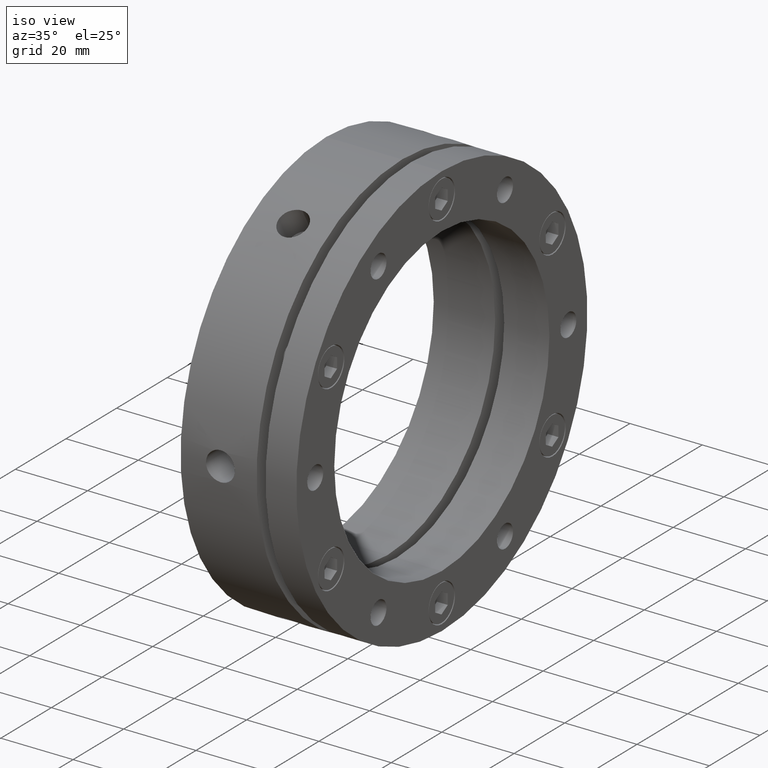
[diagram: clean part render]
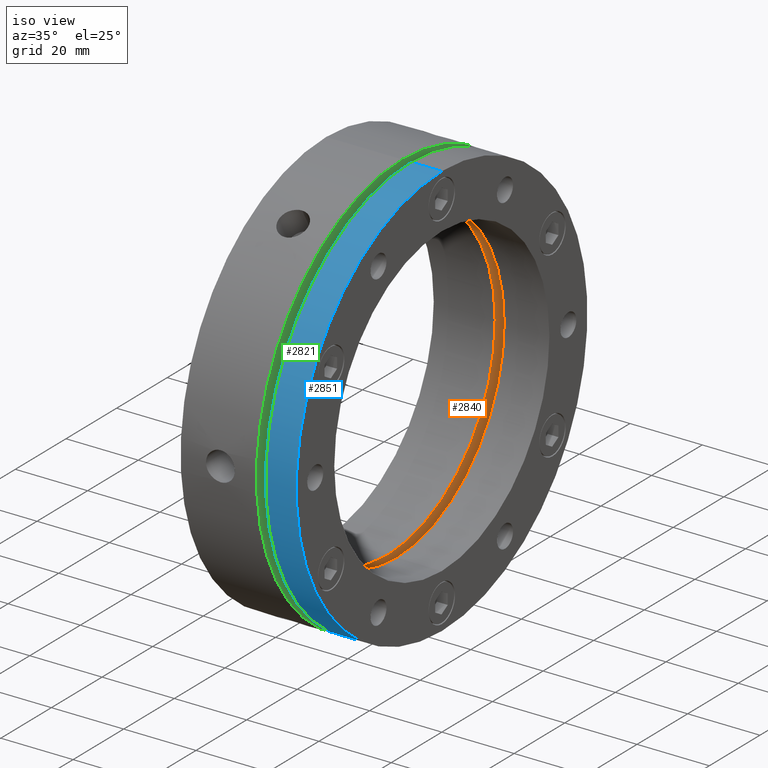
[diagram: same view with three faces highlighted in distinct colors, each labeled with its STEP entity id]
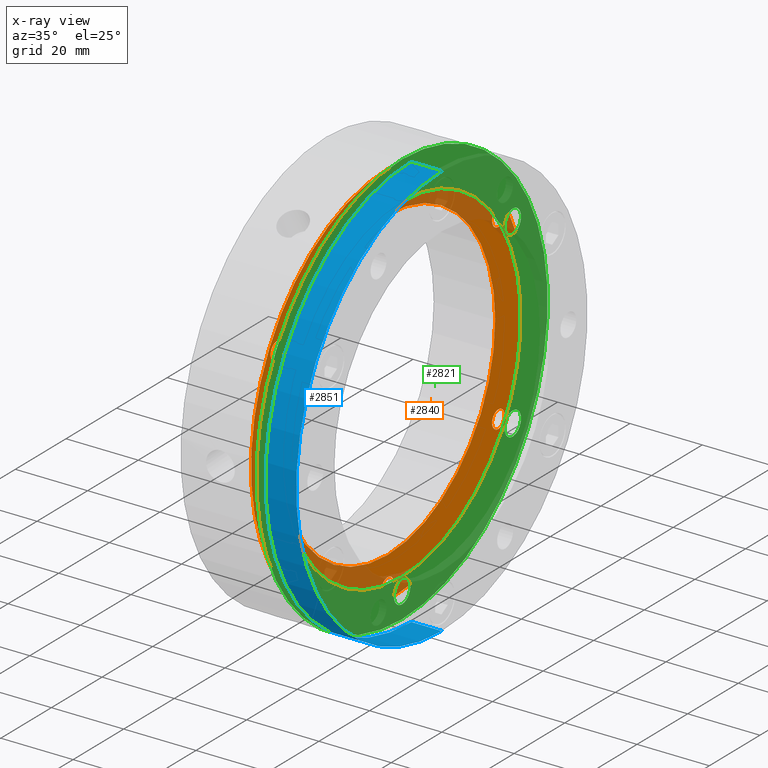
[diagram: x-ray of the same camera — body ghosted, the three highlighted faces saturated]
A machine part, iso view with three faces highlighted in distinct colors.
The next image is the same camera in x-ray (body ghosted, the three faces saturated) — at least one of them is partly hidden behind the body in this view.
Their STEP definitions:

[orange] entity #2840 — the highlighted planar face has unit normal (-1, 0, 0).
#160 = EDGE_LOOP ( 'NONE', ( #988, #986 ) ) ;
#190 = EDGE_LOOP ( 'NONE', ( #995, #992 ) ) ;
#218 = EDGE_LOOP ( 'NONE', ( #978, #977 ) ) ;
#219 = EDGE_LOOP ( 'NONE', ( #985, #984 ) ) ;
#227 = EDGE_LOOP ( 'NONE', ( #981, #979 ) ) ;
#230 = EDGE_LOOP ( 'NONE', ( #990, #989 ) ) ;
#234 = EDGE_LOOP ( 'NONE', ( #1521, #1586 ) ) ;
#244 = EDGE_LOOP ( 'NONE', ( #999, #996 ) ) ;
#297 = VERTEX_POINT ( 'NONE', #1293 ) ;
#317 = VERTEX_POINT ( 'NONE', #1308 ) ;
#320 = VERTEX_POINT ( 'NONE', #1311 ) ;
#321 = VERTEX_POINT ( 'NONE', #1312 ) ;
#357 = VERTEX_POINT ( 'NONE', #1348 ) ;
#389 = VERTEX_POINT ( 'NONE', #1380 ) ;
#394 = VERTEX_POINT ( 'NONE', #1385 ) ;
#396 = VERTEX_POINT ( 'NONE', #1387 ) ;
#404 = VERTEX_POINT ( 'NONE', #1395 ) ;
#411 = VERTEX_POINT ( 'NONE', #1402 ) ;
#429 = VERTEX_POINT ( 'NONE', #1811 ) ;
#450 = VERTEX_POINT ( 'NONE', #1832 ) ;
#461 = VERTEX_POINT ( 'NONE', #1843 ) ;
#477 = VERTEX_POINT ( 'NONE', #1859 ) ;
#478 = VERTEX_POINT ( 'NONE', #1860 ) ;
#480 = VERTEX_POINT ( 'NONE', #1862 ) ;
#556 = AXIS2_PLACEMENT_3D ( 'NONE', #2290, #2291, #2292 ) ;
#558 = AXIS2_PLACEMENT_3D ( 'NONE', #2280, #2281, #2282 ) ;
#560 = AXIS2_PLACEMENT_3D ( 'NONE', #2270, #2271, #2272 ) ;
#562 = AXIS2_PLACEMENT_3D ( 'NONE', #2260, #2261, #2262 ) ;
#564 = AXIS2_PLACEMENT_3D ( 'NONE', #2250, #2251, #2252 ) ;
#566 = AXIS2_PLACEMENT_3D ( 'NONE', #2240, #2241, #2242 ) ;
#567 = AXIS2_PLACEMENT_3D ( 'NONE', #2235, #2236, #2237 ) ;
#610 = EDGE_CURVE ( 'NONE', #450, #404, #4178, .T. ) ;
#612 = EDGE_CURVE ( 'NONE', #396, #477, #4181, .T. ) ;
#616 = EDGE_CURVE ( 'NONE', #411, #317, #4187, .T. ) ;
#620 = EDGE_CURVE ( 'NONE', #429, #461, #4193, .T. ) ;
#624 = EDGE_CURVE ( 'NONE', #320, #321, #4199, .T. ) ;
#628 = EDGE_CURVE ( 'NONE', #389, #297, #4205, .T. ) ;
#632 = EDGE_CURVE ( 'NONE', #357, #394, #4211, .T. ) ;
#678 = EDGE_CURVE ( 'NONE', #480, #478, #4287, .T. ) ;
#751 = AXIS2_PLACEMENT_3D ( 'NONE', #2691, #2692, #2693 ) ;
#803 = AXIS2_PLACEMENT_3D ( 'NONE', #2688, #2689, #2690 ) ;
#822 = AXIS2_PLACEMENT_3D ( 'NONE', #2791, #2792, #2793 ) ;
#827 = AXIS2_PLACEMENT_3D ( 'NONE', #2776, #2777, #2778 ) ;
#837 = AXIS2_PLACEMENT_3D ( 'NONE', #2745, #2746, #2747 ) ;
#838 = AXIS2_PLACEMENT_3D ( 'NONE', #2742, #2743, #2744 ) ;
#844 = AXIS2_PLACEMENT_3D ( 'NONE', #2739, #2740, #2741 ) ;
#878 = AXIS2_PLACEMENT_3D ( 'NONE', #2399, #2400, #2401 ) ;
#977 = ORIENTED_EDGE ( 'NONE', *, *, #632, .T. ) ;
#978 = ORIENTED_EDGE ( 'NONE', *, *, #1686, .T. ) ;
#979 = ORIENTED_EDGE ( 'NONE', *, *, #628, .T. ) ;
#981 = ORIENTED_EDGE ( 'NONE', *, *, #1637, .T. ) ;
#984 = ORIENTED_EDGE ( 'NONE', *, *, #624, .T. ) ;
#985 = ORIENTED_EDGE ( 'NONE', *, *, #1671, .T. ) ;
#986 = ORIENTED_EDGE ( 'NONE', *, *, #620, .T. ) ;
#988 = ORIENTED_EDGE ( 'NONE', *, *, #1636, .T. ) ;
#989 = ORIENTED_EDGE ( 'NONE', *, *, #616, .T. ) ;
#990 = ORIENTED_EDGE ( 'NONE', *, *, #1653, .T. ) ;
#992 = ORIENTED_EDGE ( 'NONE', *, *, #612, .T. ) ;
#995 = ORIENTED_EDGE ( 'NONE', *, *, #1655, .T. ) ;
#996 = ORIENTED_EDGE ( 'NONE', *, *, #1654, .T. ) ;
#999 = ORIENTED_EDGE ( 'NONE', *, *, #610, .T. ) ;
#1113 = AXIS2_PLACEMENT_3D ( 'NONE', #2995, #2996, #2997 ) ;
#1293 = CARTESIAN_POINT ( 'NONE',  ( 17.00000000000000700, 43.73428289111416200, -22.79150000000003800 ) ) ;
#1308 = CARTESIAN_POINT ( 'NONE',  ( 17.00000000000000700, -43.73428289111416900, 27.70850000000001900 ) ) ;
#1311 = CARTESIAN_POINT ( 'NONE',  ( 17.00000000000000700, -8.580704584429623500E-015, -52.95850000000004300 ) ) ;
#1312 = CARTESIAN_POINT ( 'NONE',  ( 17.00000000000000700, -8.881783999999999800E-015, -48.04150000000003500 ) ) ;
#1348 = CARTESIAN_POINT ( 'NONE',  ( 17.00000000000000700, 43.73428289111419800, 22.79149999999997800 ) ) ;
#1380 = CARTESIAN_POINT ( 'NONE',  ( 17.00000000000000700, 43.73428289111416200, -27.70850000000003600 ) ) ;
#1385 = CARTESIAN_POINT ( 'NONE',  ( 17.00000000000000700, 43.73428289111419800, 27.70849999999998300 ) ) ;
#1387 = CARTESIAN_POINT ( 'NONE',  ( 17.00000000000000700, 3.010794155703764200E-016, 48.04150000000002800 ) ) ;
#1395 = CARTESIAN_POINT ( 'NONE',  ( 17.00000000000000700, 5.204748896376250900E-015, 42.50000000000000000 ) ) ;
#1402 = CARTESIAN_POINT ( 'NONE',  ( 17.00000000000000700, -43.73428289111416900, 22.79150000000002100 ) ) ;
#1521 = ORIENTED_EDGE ( 'NONE', *, *, #1666, .F. ) ;
#1586 = ORIENTED_EDGE ( 'NONE', *, *, #678, .F. ) ;
#1636 = EDGE_CURVE ( 'NONE', #461, #429, #4443, .T. ) ;
#1637 = EDGE_CURVE ( 'NONE', #297, #389, #4445, .T. ) ;
#1653 = EDGE_CURVE ( 'NONE', #317, #411, #4461, .T. ) ;
#1654 = EDGE_CURVE ( 'NONE', #404, #450, #4462, .T. ) ;
#1655 = EDGE_CURVE ( 'NONE', #477, #396, #4463, .T. ) ;
#1666 = EDGE_CURVE ( 'NONE', #478, #480, #4476, .T. ) ;
#1671 = EDGE_CURVE ( 'NONE', #321, #320, #4481, .T. ) ;
#1686 = EDGE_CURVE ( 'NONE', #394, #357, #4496, .T. ) ;
#1797 = AXIS2_PLACEMENT_3D ( 'NONE', #3329, #3327, #3332 ) ;
#1811 = CARTESIAN_POINT ( 'NONE',  ( 17.00000000000000700, -43.73428289111417700, -27.70850000000000400 ) ) ;
#1832 = CARTESIAN_POINT ( 'NONE',  ( 17.00000000000000700, 0.0000000000000000000, -42.50000000000000000 ) ) ;
#1843 = CARTESIAN_POINT ( 'NONE',  ( 17.00000000000000700, -43.73428289111417700, -22.79150000000000600 ) ) ;
#1859 = CARTESIAN_POINT ( 'NONE',  ( 17.00000000000000700, 0.0000000000000000000, 52.95850000000003600 ) ) ;
#1860 = CARTESIAN_POINT ( 'NONE',  ( 17.00000000000000000, 0.0000000000000000000, 54.00000000000000000 ) ) ;
#1862 = CARTESIAN_POINT ( 'NONE',  ( 17.00000000000000000, 6.613092715395707500E-015, -54.00000000000000000 ) ) ;
#2235 = CARTESIAN_POINT ( 'NONE',  ( 17.00000000000000700, 0.0000000000000000000, 0.0000000000000000000 ) ) ;
#2236 = DIRECTION ( 'NONE',  ( -1.000000000000000000, -0.0000000000000000000, -0.0000000000000000000 ) ) ;
#2237 = DIRECTION ( 'NONE',  ( 0.0000000000000000000, 0.0000000000000000000, -1.000000000000000000 ) ) ;
#2240 = CARTESIAN_POINT ( 'NONE',  ( 17.00000000000000700, 0.0000000000000000000, 50.50000000000002800 ) ) ;
#2241 = DIRECTION ( 'NONE',  ( -1.000000000000000000, 0.0000000000000000000, 0.0000000000000000000 ) ) ;
#2242 = DIRECTION ( 'NONE',  ( 0.0000000000000000000, 0.0000000000000000000, 1.000000000000000000 ) ) ;
#2250 = CARTESIAN_POINT ( 'NONE',  ( 17.00000000000000700, -43.73428289111416900, 25.25000000000001800 ) ) ;
#2251 = DIRECTION ( 'NONE',  ( -1.000000000000000000, 0.0000000000000000000, 0.0000000000000000000 ) ) ;
#2252 = DIRECTION ( 'NONE',  ( 0.0000000000000000000, 0.0000000000000000000, 1.000000000000000000 ) ) ;
#2260 = CARTESIAN_POINT ( 'NONE',  ( 17.00000000000000700, -43.73428289111417700, -25.25000000000000400 ) ) ;
#2261 = DIRECTION ( 'NONE',  ( -1.000000000000000000, 0.0000000000000000000, 0.0000000000000000000 ) ) ;
#2262 = DIRECTION ( 'NONE',  ( 0.0000000000000000000, 0.0000000000000000000, 1.000000000000000000 ) ) ;
#2270 = CARTESIAN_POINT ( 'NONE',  ( 17.00000000000000700, -8.881783999999999800E-015, -50.50000000000003600 ) ) ;
#2271 = DIRECTION ( 'NONE',  ( -1.000000000000000000, 0.0000000000000000000, 0.0000000000000000000 ) ) ;
#2272 = DIRECTION ( 'NONE',  ( 0.0000000000000000000, 0.0000000000000000000, 1.000000000000000000 ) ) ;
#2280 = CARTESIAN_POINT ( 'NONE',  ( 17.00000000000000700, 43.73428289111416200, -25.25000000000003600 ) ) ;
#2281 = DIRECTION ( 'NONE',  ( -1.000000000000000000, 0.0000000000000000000, 0.0000000000000000000 ) ) ;
#2282 = DIRECTION ( 'NONE',  ( 0.0000000000000000000, 0.0000000000000000000, 1.000000000000000000 ) ) ;
#2290 = CARTESIAN_POINT ( 'NONE',  ( 17.00000000000000700, 43.73428289111419800, 25.24999999999998200 ) ) ;
#2291 = DIRECTION ( 'NONE',  ( -1.000000000000000000, 0.0000000000000000000, 0.0000000000000000000 ) ) ;
#2292 = DIRECTION ( 'NONE',  ( 0.0000000000000000000, 0.0000000000000000000, 1.000000000000000000 ) ) ;
#2399 = CARTESIAN_POINT ( 'NONE',  ( 17.00000000000000000, 0.0000000000000000000, 0.0000000000000000000 ) ) ;
#2400 = DIRECTION ( 'NONE',  ( -1.000000000000000000, 0.0000000000000000000, 0.0000000000000000000 ) ) ;
#2401 = DIRECTION ( 'NONE',  ( 0.0000000000000000000, 0.0000000000000000000, 1.000000000000000000 ) ) ;
#2688 = CARTESIAN_POINT ( 'NONE',  ( 17.00000000000000700, -43.73428289111417700, -25.25000000000000400 ) ) ;
#2689 = DIRECTION ( 'NONE',  ( -1.000000000000000000, 0.0000000000000000000, 0.0000000000000000000 ) ) ;
#2690 = DIRECTION ( 'NONE',  ( 0.0000000000000000000, 0.0000000000000000000, 1.000000000000000000 ) ) ;
#2691 = CARTESIAN_POINT ( 'NONE',  ( 17.00000000000000700, 43.73428289111416200, -25.25000000000003600 ) ) ;
#2692 = DIRECTION ( 'NONE',  ( -1.000000000000000000, 0.0000000000000000000, 0.0000000000000000000 ) ) ;
#2693 = DIRECTION ( 'NONE',  ( 0.0000000000000000000, 0.0000000000000000000, 1.000000000000000000 ) ) ;
#2739 = CARTESIAN_POINT ( 'NONE',  ( 17.00000000000000700, -43.73428289111416900, 25.25000000000001800 ) ) ;
#2740 = DIRECTION ( 'NONE',  ( -1.000000000000000000, 0.0000000000000000000, 0.0000000000000000000 ) ) ;
#2741 = DIRECTION ( 'NONE',  ( 0.0000000000000000000, 0.0000000000000000000, 1.000000000000000000 ) ) ;
#2742 = CARTESIAN_POINT ( 'NONE',  ( 17.00000000000000700, 0.0000000000000000000, 0.0000000000000000000 ) ) ;
#2743 = DIRECTION ( 'NONE',  ( -1.000000000000000000, -0.0000000000000000000, -0.0000000000000000000 ) ) ;
#2744 = DIRECTION ( 'NONE',  ( 0.0000000000000000000, 0.0000000000000000000, -1.000000000000000000 ) ) ;
#2745 = CARTESIAN_POINT ( 'NONE',  ( 17.00000000000000700, 0.0000000000000000000, 50.50000000000002800 ) ) ;
#2746 = DIRECTION ( 'NONE',  ( -1.000000000000000000, 0.0000000000000000000, 0.0000000000000000000 ) ) ;
#2747 = DIRECTION ( 'NONE',  ( 0.0000000000000000000, 0.0000000000000000000, 1.000000000000000000 ) ) ;
#2776 = CARTESIAN_POINT ( 'NONE',  ( 17.00000000000000000, 0.0000000000000000000, 0.0000000000000000000 ) ) ;
#2777 = DIRECTION ( 'NONE',  ( -1.000000000000000000, 0.0000000000000000000, 0.0000000000000000000 ) ) ;
#2778 = DIRECTION ( 'NONE',  ( 0.0000000000000000000, 0.0000000000000000000, 1.000000000000000000 ) ) ;
#2791 = CARTESIAN_POINT ( 'NONE',  ( 17.00000000000000700, -8.881783999999999800E-015, -50.50000000000003600 ) ) ;
#2792 = DIRECTION ( 'NONE',  ( -1.000000000000000000, 0.0000000000000000000, 0.0000000000000000000 ) ) ;
#2793 = DIRECTION ( 'NONE',  ( 0.0000000000000000000, 0.0000000000000000000, 1.000000000000000000 ) ) ;
#2840 = ADVANCED_FACE ( 'NONE', ( #4654, #4662, #4658, #4656, #4660, #4663, #4664, #4665 ), #3330, .F. ) ;
#2995 = CARTESIAN_POINT ( 'NONE',  ( 17.00000000000000700, 43.73428289111419800, 25.24999999999998200 ) ) ;
#2996 = DIRECTION ( 'NONE',  ( -1.000000000000000000, 0.0000000000000000000, 0.0000000000000000000 ) ) ;
#2997 = DIRECTION ( 'NONE',  ( 0.0000000000000000000, 0.0000000000000000000, 1.000000000000000000 ) ) ;
#3327 = DIRECTION ( 'NONE',  ( -1.000000000000000000, 0.0000000000000000000, 0.0000000000000000000 ) ) ;
#3329 = CARTESIAN_POINT ( 'NONE',  ( 17.00000000000000700, 27.00000000000000000, 0.0000000000000000000 ) ) ;
#3330 = PLANE ( 'NONE',  #1797 ) ;
#3332 = DIRECTION ( 'NONE',  ( 0.0000000000000000000, 0.0000000000000000000, 1.000000000000000000 ) ) ;
#4178 = CIRCLE ( 'NONE', #567, 42.50000000000000000 ) ;
#4181 = CIRCLE ( 'NONE', #566, 2.458500000000002600 ) ;
#4187 = CIRCLE ( 'NONE', #564, 2.458499999999999000 ) ;
#4193 = CIRCLE ( 'NONE', #562, 2.458499999999999000 ) ;
#4199 = CIRCLE ( 'NONE', #560, 2.458500000000002600 ) ;
#4205 = CIRCLE ( 'NONE', #558, 2.458499999999999000 ) ;
#4211 = CIRCLE ( 'NONE', #556, 2.458500000000002600 ) ;
#4287 = CIRCLE ( 'NONE', #878, 54.00000000000000000 ) ;
#4443 = CIRCLE ( 'NONE', #803, 2.458499999999999000 ) ;
#4445 = CIRCLE ( 'NONE', #751, 2.458499999999999000 ) ;
#4461 = CIRCLE ( 'NONE', #844, 2.458499999999999000 ) ;
#4462 = CIRCLE ( 'NONE', #838, 42.50000000000000000 ) ;
#4463 = CIRCLE ( 'NONE', #837, 2.458500000000002600 ) ;
#4476 = CIRCLE ( 'NONE', #827, 54.00000000000000000 ) ;
#4481 = CIRCLE ( 'NONE', #822, 2.458500000000002600 ) ;
#4496 = CIRCLE ( 'NONE', #1113, 2.458500000000002600 ) ;
#4654 = FACE_BOUND ( 'NONE', #244, .T. ) ;
#4656 = FACE_BOUND ( 'NONE', #160, .T. ) ;
#4658 = FACE_BOUND ( 'NONE', #230, .T. ) ;
#4660 = FACE_BOUND ( 'NONE', #219, .T. ) ;
#4662 = FACE_BOUND ( 'NONE', #190, .T. ) ;
#4663 = FACE_BOUND ( 'NONE', #227, .T. ) ;
#4664 = FACE_BOUND ( 'NONE', #218, .T. ) ;
#4665 = FACE_OUTER_BOUND ( 'NONE', #234, .T. ) ;

[blue] entity #2851 — the highlighted cylindrical surface (partial cylindrical patch) has radius 57.5 mm, axis along (1, 0, 0).
#82 = EDGE_LOOP ( 'NONE', ( #1066, #1065, #1064, #1063 ) ) ;
#423 = VERTEX_POINT ( 'NONE', #1805 ) ;
#424 = VERTEX_POINT ( 'NONE', #1806 ) ;
#434 = VERTEX_POINT ( 'NONE', #1816 ) ;
#444 = VERTEX_POINT ( 'NONE', #1826 ) ;
#705 = EDGE_CURVE ( 'NONE', #434, #424, #4326, .T. ) ;
#707 = EDGE_CURVE ( 'NONE', #444, #423, #4331, .T. ) ;
#813 = AXIS2_PLACEMENT_3D ( 'NONE', #2971, #2972, #2973 ) ;
#825 = AXIS2_PLACEMENT_3D ( 'NONE', #2782, #2783, #2784 ) ;
#1063 = ORIENTED_EDGE ( 'NONE', *, *, #1668, .T. ) ;
#1064 = ORIENTED_EDGE ( 'NONE', *, *, #707, .T. ) ;
#1065 = ORIENTED_EDGE ( 'NONE', *, *, #1678, .T. ) ;
#1066 = ORIENTED_EDGE ( 'NONE', *, *, #705, .F. ) ;
#1668 = EDGE_CURVE ( 'NONE', #423, #424, #4478, .T. ) ;
#1678 = EDGE_CURVE ( 'NONE', #434, #444, #4488, .T. ) ;
#1786 = AXIS2_PLACEMENT_3D ( 'NONE', #3367, #3365, #3363 ) ;
#1805 = CARTESIAN_POINT ( 'NONE',  ( 31.99999999999998600, 0.0000000000000000000, -57.50000000000000000 ) ) ;
#1806 = CARTESIAN_POINT ( 'NONE',  ( 31.99999999999998600, 7.041719095097280500E-015, 57.50000000000000000 ) ) ;
#1816 = CARTESIAN_POINT ( 'NONE',  ( 23.49999999999999300, 7.041719095097280500E-015, 57.50000000000000000 ) ) ;
#1826 = CARTESIAN_POINT ( 'NONE',  ( 23.49999999999999300, 0.0000000000000000000, -57.50000000000000000 ) ) ;
#2462 = DIRECTION ( 'NONE',  ( 1.000000000000000000, 0.0000000000000000000, 0.0000000000000000000 ) ) ;
#2463 = CARTESIAN_POINT ( 'NONE',  ( 15.99999999999998600, 0.0000000000000000000, -57.50000000000000000 ) ) ;
#2464 = DIRECTION ( 'NONE',  ( 1.000000000000000000, 0.0000000000000000000, 0.0000000000000000000 ) ) ;
#2465 = CARTESIAN_POINT ( 'NONE',  ( 15.99999999999998600, 7.041719095097280500E-015, 57.50000000000000000 ) ) ;
#2782 = CARTESIAN_POINT ( 'NONE',  ( 31.99999999999998600, 0.0000000000000000000, 0.0000000000000000000 ) ) ;
#2783 = DIRECTION ( 'NONE',  ( -1.000000000000000000, -0.0000000000000000000, -0.0000000000000000000 ) ) ;
#2784 = DIRECTION ( 'NONE',  ( 0.0000000000000000000, 0.0000000000000000000, -1.000000000000000000 ) ) ;
#2851 = ADVANCED_FACE ( 'NONE', ( #4694 ), #4703, .T. ) ;
#2971 = CARTESIAN_POINT ( 'NONE',  ( 23.49999999999999300, 0.0000000000000000000, 0.0000000000000000000 ) ) ;
#2972 = DIRECTION ( 'NONE',  ( 1.000000000000000000, 0.0000000000000000000, 0.0000000000000000000 ) ) ;
#2973 = DIRECTION ( 'NONE',  ( 0.0000000000000000000, 0.0000000000000000000, -1.000000000000000000 ) ) ;
#3363 = DIRECTION ( 'NONE',  ( 0.0000000000000000000, 0.0000000000000000000, -1.000000000000000000 ) ) ;
#3365 = DIRECTION ( 'NONE',  ( 1.000000000000000000, 0.0000000000000000000, 0.0000000000000000000 ) ) ;
#3367 = CARTESIAN_POINT ( 'NONE',  ( 15.99999999999998600, 0.0000000000000000000, 0.0000000000000000000 ) ) ;
#4326 = LINE ( 'NONE', #2465, #4330 ) ;
#4330 = VECTOR ( 'NONE', #2462, 1000.000000000000000 ) ;
#4331 = LINE ( 'NONE', #2463, #4333 ) ;
#4333 = VECTOR ( 'NONE', #2464, 1000.000000000000000 ) ;
#4478 = CIRCLE ( 'NONE', #825, 57.50000000000000000 ) ;
#4488 = CIRCLE ( 'NONE', #813, 57.50000000000000000 ) ;
#4694 = FACE_OUTER_BOUND ( 'NONE', #82, .T. ) ;
#4703 = CYLINDRICAL_SURFACE ( 'NONE', #1786, 57.50000000000000000 ) ;

[green] entity #2821 — the highlighted planar face has unit normal (-1, 0, 0).
#108 = EDGE_LOOP ( 'NONE', ( #1502, #505 ) ) ;
#136 = EDGE_LOOP ( 'NONE', ( #500, #495 ) ) ;
#169 = EDGE_LOOP ( 'NONE', ( #1504, #1503 ) ) ;
#175 = EDGE_LOOP ( 'NONE', ( #496, #493 ) ) ;
#193 = EDGE_LOOP ( 'NONE', ( #1510, #1509 ) ) ;
#195 = EDGE_LOOP ( 'NONE', ( #499, #503 ) ) ;
#246 = EDGE_LOOP ( 'NONE', ( #1506, #1505 ) ) ;
#275 = EDGE_LOOP ( 'NONE', ( #1508, #1507 ) ) ;
#324 = VERTEX_POINT ( 'NONE', #1315 ) ;
#334 = VERTEX_POINT ( 'NONE', #1325 ) ;
#353 = VERTEX_POINT ( 'NONE', #1344 ) ;
#360 = VERTEX_POINT ( 'NONE', #1351 ) ;
#367 = VERTEX_POINT ( 'NONE', #1358 ) ;
#398 = VERTEX_POINT ( 'NONE', #1389 ) ;
#416 = VERTEX_POINT ( 'NONE', #1463 ) ;
#419 = VERTEX_POINT ( 'NONE', #880 ) ;
#425 = VERTEX_POINT ( 'NONE', #1807 ) ;
#432 = VERTEX_POINT ( 'NONE', #1814 ) ;
#437 = VERTEX_POINT ( 'NONE', #1819 ) ;
#440 = VERTEX_POINT ( 'NONE', #1822 ) ;
#462 = VERTEX_POINT ( 'NONE', #1844 ) ;
#476 = VERTEX_POINT ( 'NONE', #1858 ) ;
#485 = VERTEX_POINT ( 'NONE', #1867 ) ;
#486 = VERTEX_POINT ( 'NONE', #1868 ) ;
#493 = ORIENTED_EDGE ( 'NONE', *, *, #585, .F. ) ;
#495 = ORIENTED_EDGE ( 'NONE', *, *, #670, .F. ) ;
#496 = ORIENTED_EDGE ( 'NONE', *, *, #1725, .F. ) ;
#499 = ORIENTED_EDGE ( 'NONE', *, *, #1688, .F. ) ;
#500 = ORIENTED_EDGE ( 'NONE', *, *, #1685, .F. ) ;
#503 = ORIENTED_EDGE ( 'NONE', *, *, #674, .F. ) ;
#505 = ORIENTED_EDGE ( 'NONE', *, *, #666, .F. ) ;
#551 = AXIS2_PLACEMENT_3D ( 'NONE', #2339, #2340, #2341 ) ;
#553 = AXIS2_PLACEMENT_3D ( 'NONE', #2329, #2330, #2331 ) ;
#575 = AXIS2_PLACEMENT_3D ( 'NONE', #2081, #2082, #2083 ) ;
#585 = EDGE_CURVE ( 'NONE', #334, #425, #4147, .T. ) ;
#650 = EDGE_CURVE ( 'NONE', #416, #398, #4245, .T. ) ;
#654 = EDGE_CURVE ( 'NONE', #419, #462, #4250, .T. ) ;
#658 = EDGE_CURVE ( 'NONE', #437, #360, #4256, .T. ) ;
#662 = EDGE_CURVE ( 'NONE', #324, #432, #4262, .T. ) ;
#666 = EDGE_CURVE ( 'NONE', #440, #476, #4268, .T. ) ;
#670 = EDGE_CURVE ( 'NONE', #367, #353, #4274, .T. ) ;
#674 = EDGE_CURVE ( 'NONE', #486, #485, #4280, .T. ) ;
#787 = AXIS2_PLACEMENT_3D ( 'NONE', #2349, #2350, #2351 ) ;
#790 = AXIS2_PLACEMENT_3D ( 'NONE', #2989, #2990, #2991 ) ;
#839 = AXIS2_PLACEMENT_3D ( 'NONE', #2359, #2360, #2361 ) ;
#851 = AXIS2_PLACEMENT_3D ( 'NONE', #2379, #2380, #2381 ) ;
#854 = AXIS2_PLACEMENT_3D ( 'NONE', #2389, #2390, #2391 ) ;
#862 = AXIS2_PLACEMENT_3D ( 'NONE', #2369, #2370, #2371 ) ;
#880 = CARTESIAN_POINT ( 'NONE',  ( 20.99999999999999300, 3.980102097228895300E-016, 53.75000000000003600 ) ) ;
#1076 = AXIS2_PLACEMENT_3D ( 'NONE', #3271, #3269, #3275 ) ;
#1102 = AXIS2_PLACEMENT_3D ( 'NONE', #3177, #3178, #3179 ) ;
#1103 = AXIS2_PLACEMENT_3D ( 'NONE', #3173, #3174, #3175 ) ;
#1106 = AXIS2_PLACEMENT_3D ( 'NONE', #3162, #3163, #3164 ) ;
#1111 = AXIS2_PLACEMENT_3D ( 'NONE', #3107, #3108, #3109 ) ;
#1112 = AXIS2_PLACEMENT_3D ( 'NONE', #2992, #2993, #2994 ) ;
#1116 = AXIS2_PLACEMENT_3D ( 'NONE', #3092, #3093, #3094 ) ;
#1129 = AXIS2_PLACEMENT_3D ( 'NONE', #3003, #3004, #3005 ) ;
#1315 = CARTESIAN_POINT ( 'NONE',  ( 20.99999999999999300, -43.73428289111417700, -22.00000000000000700 ) ) ;
#1325 = CARTESIAN_POINT ( 'NONE',  ( 20.99999999999999300, 7.041719095097280500E-015, 57.50000000000000000 ) ) ;
#1344 = CARTESIAN_POINT ( 'NONE',  ( 20.99999999999999300, 43.73428289111416200, -28.50000000000003600 ) ) ;
#1351 = CARTESIAN_POINT ( 'NONE',  ( 20.99999999999999300, -43.73428289111416900, 22.00000000000002100 ) ) ;
#1358 = CARTESIAN_POINT ( 'NONE',  ( 20.99999999999999300, 43.73428289111416200, -22.00000000000003600 ) ) ;
#1389 = CARTESIAN_POINT ( 'NONE',  ( 20.99999999999999300, 0.0000000000000000000, 47.00000000000000000 ) ) ;
#1463 = CARTESIAN_POINT ( 'NONE',  ( 20.99999999999999300, 5.755839955992560600E-015, -47.00000000000000000 ) ) ;
#1502 = ORIENTED_EDGE ( 'NONE', *, *, #1684, .F. ) ;
#1503 = ORIENTED_EDGE ( 'NONE', *, *, #662, .F. ) ;
#1504 = ORIENTED_EDGE ( 'NONE', *, *, #1730, .F. ) ;
#1505 = ORIENTED_EDGE ( 'NONE', *, *, #658, .F. ) ;
#1506 = ORIENTED_EDGE ( 'NONE', *, *, #1729, .F. ) ;
#1507 = ORIENTED_EDGE ( 'NONE', *, *, #654, .F. ) ;
#1508 = ORIENTED_EDGE ( 'NONE', *, *, #1711, .F. ) ;
#1509 = ORIENTED_EDGE ( 'NONE', *, *, #650, .F. ) ;
#1510 = ORIENTED_EDGE ( 'NONE', *, *, #1716, .F. ) ;
#1684 = EDGE_CURVE ( 'NONE', #476, #440, #4494, .T. ) ;
#1685 = EDGE_CURVE ( 'NONE', #353, #367, #4495, .T. ) ;
#1688 = EDGE_CURVE ( 'NONE', #485, #486, #4498, .T. ) ;
#1711 = EDGE_CURVE ( 'NONE', #462, #419, #4529, .T. ) ;
#1716 = EDGE_CURVE ( 'NONE', #398, #416, #4524, .T. ) ;
#1725 = EDGE_CURVE ( 'NONE', #425, #334, #4546, .T. ) ;
#1729 = EDGE_CURVE ( 'NONE', #360, #437, #4552, .T. ) ;
#1730 = EDGE_CURVE ( 'NONE', #432, #324, #4553, .T. ) ;
#1807 = CARTESIAN_POINT ( 'NONE',  ( 20.99999999999999300, 0.0000000000000000000, -57.50000000000000000 ) ) ;
#1814 = CARTESIAN_POINT ( 'NONE',  ( 20.99999999999999300, -43.73428289111417700, -28.50000000000000400 ) ) ;
#1819 = CARTESIAN_POINT ( 'NONE',  ( 20.99999999999999300, -43.73428289111416900, 28.50000000000001800 ) ) ;
#1822 = CARTESIAN_POINT ( 'NONE',  ( 20.99999999999999300, -8.483773790277109000E-015, -47.25000000000003600 ) ) ;
#1844 = CARTESIAN_POINT ( 'NONE',  ( 20.99999999999999300, 0.0000000000000000000, 47.25000000000002800 ) ) ;
#1858 = CARTESIAN_POINT ( 'NONE',  ( 20.99999999999999300, -8.881783999999999800E-015, -53.75000000000004300 ) ) ;
#1867 = CARTESIAN_POINT ( 'NONE',  ( 20.99999999999999300, 43.73428289111419800, 21.99999999999998200 ) ) ;
#1868 = CARTESIAN_POINT ( 'NONE',  ( 20.99999999999999300, 43.73428289111419800, 28.49999999999997900 ) ) ;
#2081 = CARTESIAN_POINT ( 'NONE',  ( 20.99999999999999300, 0.0000000000000000000, 0.0000000000000000000 ) ) ;
#2082 = DIRECTION ( 'NONE',  ( -1.000000000000000000, -0.0000000000000000000, -0.0000000000000000000 ) ) ;
#2083 = DIRECTION ( 'NONE',  ( 0.0000000000000000000, 0.0000000000000000000, -1.000000000000000000 ) ) ;
#2329 = CARTESIAN_POINT ( 'NONE',  ( 20.99999999999999300, 0.0000000000000000000, 0.0000000000000000000 ) ) ;
#2330 = DIRECTION ( 'NONE',  ( 1.000000000000000000, -0.0000000000000000000, -0.0000000000000000000 ) ) ;
#2331 = DIRECTION ( 'NONE',  ( 0.0000000000000000000, 0.0000000000000000000, 1.000000000000000000 ) ) ;
#2339 = CARTESIAN_POINT ( 'NONE',  ( 20.99999999999999300, 0.0000000000000000000, 50.50000000000002800 ) ) ;
#2340 = DIRECTION ( 'NONE',  ( 1.000000000000000000, 0.0000000000000000000, 0.0000000000000000000 ) ) ;
#2341 = DIRECTION ( 'NONE',  ( 0.0000000000000000000, 0.0000000000000000000, -1.000000000000000000 ) ) ;
#2349 = CARTESIAN_POINT ( 'NONE',  ( 20.99999999999999300, -43.73428289111416900, 25.25000000000001800 ) ) ;
#2350 = DIRECTION ( 'NONE',  ( 1.000000000000000000, 0.0000000000000000000, 0.0000000000000000000 ) ) ;
#2351 = DIRECTION ( 'NONE',  ( 0.0000000000000000000, 0.0000000000000000000, -1.000000000000000000 ) ) ;
#2359 = CARTESIAN_POINT ( 'NONE',  ( 20.99999999999999300, -43.73428289111417700, -25.25000000000000400 ) ) ;
#2360 = DIRECTION ( 'NONE',  ( 1.000000000000000000, 0.0000000000000000000, 0.0000000000000000000 ) ) ;
#2361 = DIRECTION ( 'NONE',  ( 0.0000000000000000000, 0.0000000000000000000, -1.000000000000000000 ) ) ;
#2369 = CARTESIAN_POINT ( 'NONE',  ( 20.99999999999999300, -8.881783999999999800E-015, -50.50000000000003600 ) ) ;
#2370 = DIRECTION ( 'NONE',  ( 1.000000000000000000, 0.0000000000000000000, 0.0000000000000000000 ) ) ;
#2371 = DIRECTION ( 'NONE',  ( 0.0000000000000000000, 0.0000000000000000000, -1.000000000000000000 ) ) ;
#2379 = CARTESIAN_POINT ( 'NONE',  ( 20.99999999999999300, 43.73428289111416200, -25.25000000000003600 ) ) ;
#2380 = DIRECTION ( 'NONE',  ( 1.000000000000000000, 0.0000000000000000000, 0.0000000000000000000 ) ) ;
#2381 = DIRECTION ( 'NONE',  ( 0.0000000000000000000, 0.0000000000000000000, -1.000000000000000000 ) ) ;
#2389 = CARTESIAN_POINT ( 'NONE',  ( 20.99999999999999300, 43.73428289111419800, 25.24999999999998200 ) ) ;
#2390 = DIRECTION ( 'NONE',  ( 1.000000000000000000, 0.0000000000000000000, 0.0000000000000000000 ) ) ;
#2391 = DIRECTION ( 'NONE',  ( 0.0000000000000000000, 0.0000000000000000000, -1.000000000000000000 ) ) ;
#2821 = ADVANCED_FACE ( 'NONE', ( #4607, #4615, #4613, #4612, #4611, #4616, #4617, #4618 ), #3273, .F. ) ;
#2989 = CARTESIAN_POINT ( 'NONE',  ( 20.99999999999999300, -8.881783999999999800E-015, -50.50000000000003600 ) ) ;
#2990 = DIRECTION ( 'NONE',  ( 1.000000000000000000, 0.0000000000000000000, 0.0000000000000000000 ) ) ;
#2991 = DIRECTION ( 'NONE',  ( 0.0000000000000000000, 0.0000000000000000000, -1.000000000000000000 ) ) ;
#2992 = CARTESIAN_POINT ( 'NONE',  ( 20.99999999999999300, 43.73428289111416200, -25.25000000000003600 ) ) ;
#2993 = DIRECTION ( 'NONE',  ( 1.000000000000000000, 0.0000000000000000000, 0.0000000000000000000 ) ) ;
#2994 = DIRECTION ( 'NONE',  ( 0.0000000000000000000, 0.0000000000000000000, -1.000000000000000000 ) ) ;
#3003 = CARTESIAN_POINT ( 'NONE',  ( 20.99999999999999300, 43.73428289111419800, 25.24999999999998200 ) ) ;
#3004 = DIRECTION ( 'NONE',  ( 1.000000000000000000, 0.0000000000000000000, 0.0000000000000000000 ) ) ;
#3005 = DIRECTION ( 'NONE',  ( 0.0000000000000000000, 0.0000000000000000000, -1.000000000000000000 ) ) ;
#3092 = CARTESIAN_POINT ( 'NONE',  ( 20.99999999999999300, 0.0000000000000000000, 50.50000000000002800 ) ) ;
#3093 = DIRECTION ( 'NONE',  ( 1.000000000000000000, 0.0000000000000000000, 0.0000000000000000000 ) ) ;
#3094 = DIRECTION ( 'NONE',  ( 0.0000000000000000000, 0.0000000000000000000, -1.000000000000000000 ) ) ;
#3107 = CARTESIAN_POINT ( 'NONE',  ( 20.99999999999999300, 0.0000000000000000000, 0.0000000000000000000 ) ) ;
#3108 = DIRECTION ( 'NONE',  ( 1.000000000000000000, -0.0000000000000000000, -0.0000000000000000000 ) ) ;
#3109 = DIRECTION ( 'NONE',  ( 0.0000000000000000000, 0.0000000000000000000, 1.000000000000000000 ) ) ;
#3162 = CARTESIAN_POINT ( 'NONE',  ( 20.99999999999999300, 0.0000000000000000000, 0.0000000000000000000 ) ) ;
#3163 = DIRECTION ( 'NONE',  ( -1.000000000000000000, -0.0000000000000000000, -0.0000000000000000000 ) ) ;
#3164 = DIRECTION ( 'NONE',  ( 0.0000000000000000000, 0.0000000000000000000, -1.000000000000000000 ) ) ;
#3173 = CARTESIAN_POINT ( 'NONE',  ( 20.99999999999999300, -43.73428289111416900, 25.25000000000001800 ) ) ;
#3174 = DIRECTION ( 'NONE',  ( 1.000000000000000000, 0.0000000000000000000, 0.0000000000000000000 ) ) ;
#3175 = DIRECTION ( 'NONE',  ( 0.0000000000000000000, 0.0000000000000000000, -1.000000000000000000 ) ) ;
#3177 = CARTESIAN_POINT ( 'NONE',  ( 20.99999999999999300, -43.73428289111417700, -25.25000000000000400 ) ) ;
#3178 = DIRECTION ( 'NONE',  ( 1.000000000000000000, 0.0000000000000000000, 0.0000000000000000000 ) ) ;
#3179 = DIRECTION ( 'NONE',  ( 0.0000000000000000000, 0.0000000000000000000, -1.000000000000000000 ) ) ;
#3269 = DIRECTION ( 'NONE',  ( -1.000000000000000000, 0.0000000000000000000, 0.0000000000000000000 ) ) ;
#3271 = CARTESIAN_POINT ( 'NONE',  ( 20.99999999999999300, 52.25000000000000000, 0.0000000000000000000 ) ) ;
#3273 = PLANE ( 'NONE',  #1076 ) ;
#3275 = DIRECTION ( 'NONE',  ( 0.0000000000000000000, 0.0000000000000000000, 1.000000000000000000 ) ) ;
#4147 = CIRCLE ( 'NONE', #575, 57.50000000000000000 ) ;
#4245 = CIRCLE ( 'NONE', #553, 47.00000000000000000 ) ;
#4250 = CIRCLE ( 'NONE', #551, 3.250000000000002700 ) ;
#4256 = CIRCLE ( 'NONE', #787, 3.249999999999999600 ) ;
#4262 = CIRCLE ( 'NONE', #839, 3.249999999999999600 ) ;
#4268 = CIRCLE ( 'NONE', #862, 3.250000000000002700 ) ;
#4274 = CIRCLE ( 'NONE', #851, 3.249999999999999600 ) ;
#4280 = CIRCLE ( 'NONE', #854, 3.249999999999999600 ) ;
#4494 = CIRCLE ( 'NONE', #790, 3.250000000000002700 ) ;
#4495 = CIRCLE ( 'NONE', #1112, 3.249999999999999600 ) ;
#4498 = CIRCLE ( 'NONE', #1129, 3.249999999999999600 ) ;
#4524 = CIRCLE ( 'NONE', #1111, 47.00000000000000000 ) ;
#4529 = CIRCLE ( 'NONE', #1116, 3.250000000000002700 ) ;
#4546 = CIRCLE ( 'NONE', #1106, 57.50000000000000000 ) ;
#4552 = CIRCLE ( 'NONE', #1103, 3.249999999999999600 ) ;
#4553 = CIRCLE ( 'NONE', #1102, 3.249999999999999600 ) ;
#4607 = FACE_BOUND ( 'NONE', #193, .T. ) ;
#4611 = FACE_BOUND ( 'NONE', #108, .T. ) ;
#4612 = FACE_BOUND ( 'NONE', #169, .T. ) ;
#4613 = FACE_BOUND ( 'NONE', #246, .T. ) ;
#4615 = FACE_BOUND ( 'NONE', #275, .T. ) ;
#4616 = FACE_BOUND ( 'NONE', #136, .T. ) ;
#4617 = FACE_BOUND ( 'NONE', #195, .T. ) ;
#4618 = FACE_OUTER_BOUND ( 'NONE', #175, .T. ) ;